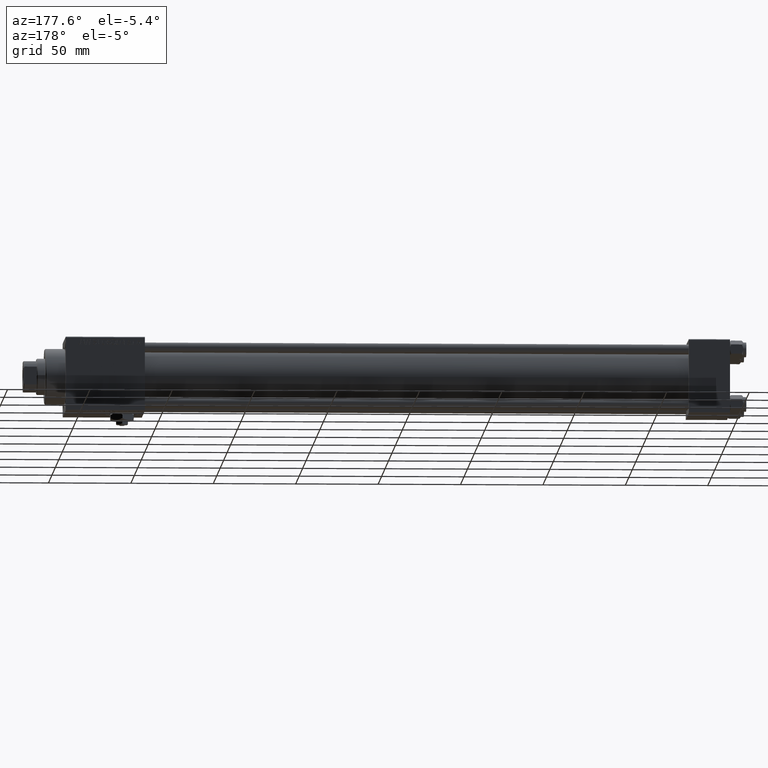
[diagram: clean part render]
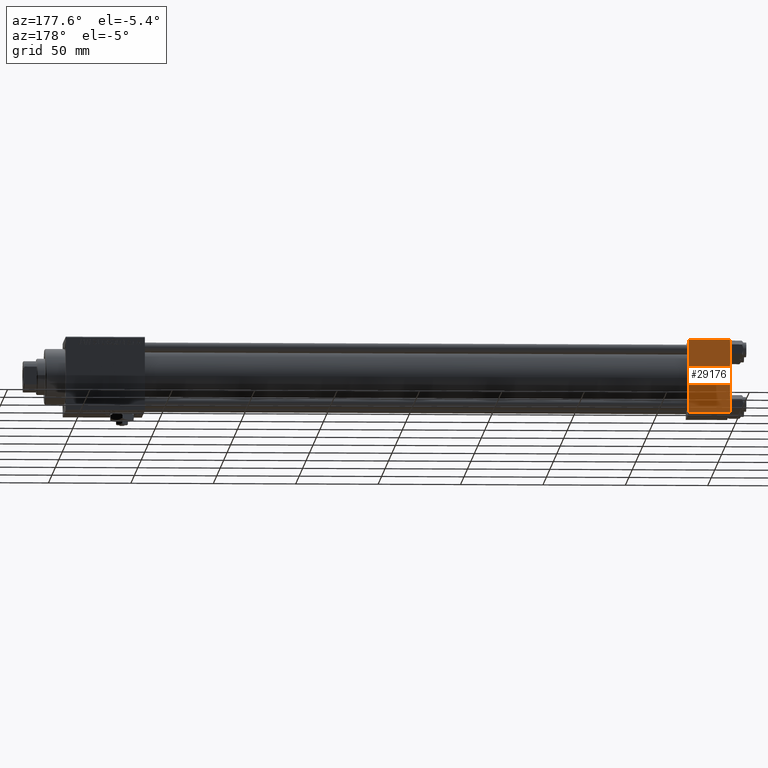
[diagram: same view with one face highlighted and labeled with its STEP entity id]
A machine part, auxiliary view. The second image highlights one B-rep face of the part: STEP entity #29176.
In plain terms, the highlighted planar face has unit normal (0, 1, 0).
Its self-contained STEP definition (entity closure, byte-faithful):
#301 = LINE ( 'NONE', #19461, #27928 ) ;
#4096 = CARTESIAN_POINT ( 'NONE',  ( 25.00000000000000000, 22.50000000000000000, -21.99999999999998224 ) ) ;
#4334 = CARTESIAN_POINT ( 'NONE',  ( 0.000000000000000000, 22.50000000000000000, 22.50000000000000355 ) ) ;
#4436 = CARTESIAN_POINT ( 'NONE',  ( 0.000000000000000000, 22.50000000000000000, 21.99999999999999645 ) ) ;
#4842 = DIRECTION ( 'NONE',  ( 0.000000000000000000, -0.000000000000000000, 1.000000000000000000 ) ) ;
#5798 = ORIENTED_EDGE ( 'NONE', *, *, #37057, .T. ) ;
#7306 = DIRECTION ( 'NONE',  ( 1.000000000000000000, 0.000000000000000000, 0.000000000000000000 ) ) ;
#8483 = CARTESIAN_POINT ( 'NONE',  ( 0.000000000000000000, 22.50000000000000000, -21.99999999999996803 ) ) ;
#11544 = VERTEX_POINT ( 'NONE', #17237 ) ;
#11689 = ORIENTED_EDGE ( 'NONE', *, *, #44985, .T. ) ;
#12348 = ORIENTED_EDGE ( 'NONE', *, *, #46547, .T. ) ;
#17237 = CARTESIAN_POINT ( 'NONE',  ( 25.00000000000000000, 22.50000000000000000, -21.99999999999996803 ) ) ;
#19461 = CARTESIAN_POINT ( 'NONE',  ( 25.00000000000000000, 22.50000000000000000, 22.50000000000000355 ) ) ;
#19844 = DIRECTION ( 'NONE',  ( -1.000000000000000000, 0.000000000000000000, 0.000000000000000000 ) ) ;
#19925 = AXIS2_PLACEMENT_3D ( 'NONE', #24788, #49659, #4842 ) ;
#21311 = VERTEX_POINT ( 'NONE', #42381 ) ;
#24192 = DIRECTION ( 'NONE',  ( 0.000000000000000000, 0.000000000000000000, -1.000000000000000000 ) ) ;
#24788 = CARTESIAN_POINT ( 'NONE',  ( 25.00000000000000000, 22.50000000000000000, 22.50000000000000355 ) ) ;
#25530 = VERTEX_POINT ( 'NONE', #4436 ) ;
#26979 = LINE ( 'NONE', #43749, #42778 ) ;
#27928 = VECTOR ( 'NONE', #24192, 1000.000000000000000 ) ;
#28982 = FACE_OUTER_BOUND ( 'NONE', #42445, .T. ) ;
#29176 = ADVANCED_FACE ( 'NONE', ( #28982 ), #44961, .T. ) ;
#29966 = DIRECTION ( 'NONE',  ( 0.000000000000000000, 0.000000000000000000, -1.000000000000000000 ) ) ;
#30974 = ORIENTED_EDGE ( 'NONE', *, *, #37525, .F. ) ;
#37057 = EDGE_CURVE ( 'NONE', #25530, #21311, #26979, .T. ) ;
#37525 = EDGE_CURVE ( 'NONE', #25530, #50874, #41059, .T. ) ;
#41059 = LINE ( 'NONE', #4334, #48651 ) ;
#42381 = CARTESIAN_POINT ( 'NONE',  ( 25.00000000000000000, 22.50000000000000000, 21.99999999999999645 ) ) ;
#42445 = EDGE_LOOP ( 'NONE', ( #12348, #11689, #30974, #5798 ) ) ;
#42778 = VECTOR ( 'NONE', #7306, 1000.000000000000000 ) ;
#43749 = CARTESIAN_POINT ( 'NONE',  ( 25.00000000000000000, 22.50000000000000000, 21.99999999999999645 ) ) ;
#44610 = VECTOR ( 'NONE', #19844, 1000.000000000000000 ) ;
#44961 = PLANE ( 'NONE',  #19925 ) ;
#44985 = EDGE_CURVE ( 'NONE', #11544, #50874, #48417, .T. ) ;
#46547 = EDGE_CURVE ( 'NONE', #21311, #11544, #301, .T. ) ;
#48417 = LINE ( 'NONE', #4096, #44610 ) ;
#48651 = VECTOR ( 'NONE', #29966, 1000.000000000000000 ) ;
#49659 = DIRECTION ( 'NONE',  ( -0.000000000000000000, 1.000000000000000000, 0.000000000000000000 ) ) ;
#50874 = VERTEX_POINT ( 'NONE', #8483 ) ;